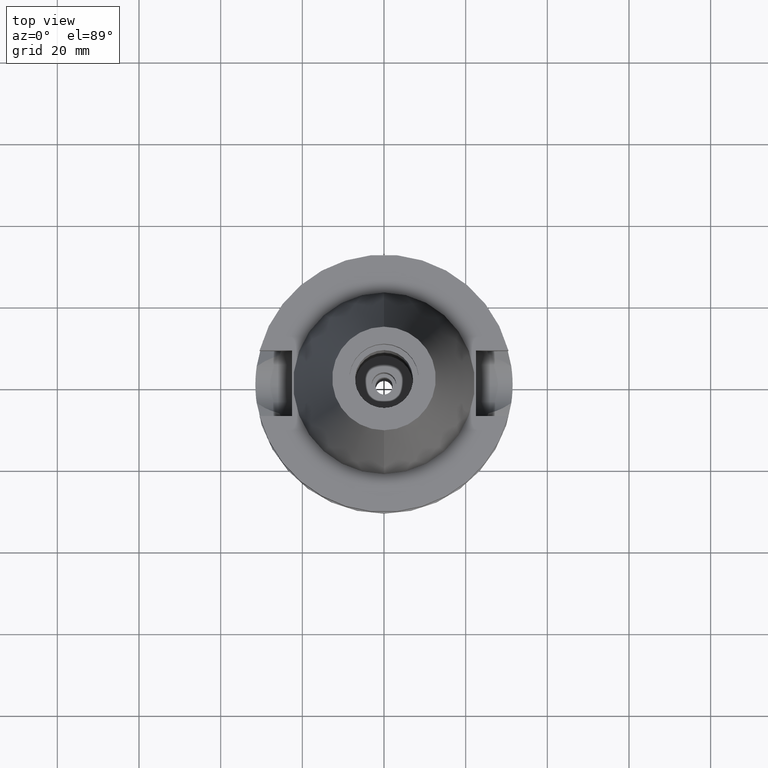
[diagram: clean part render]
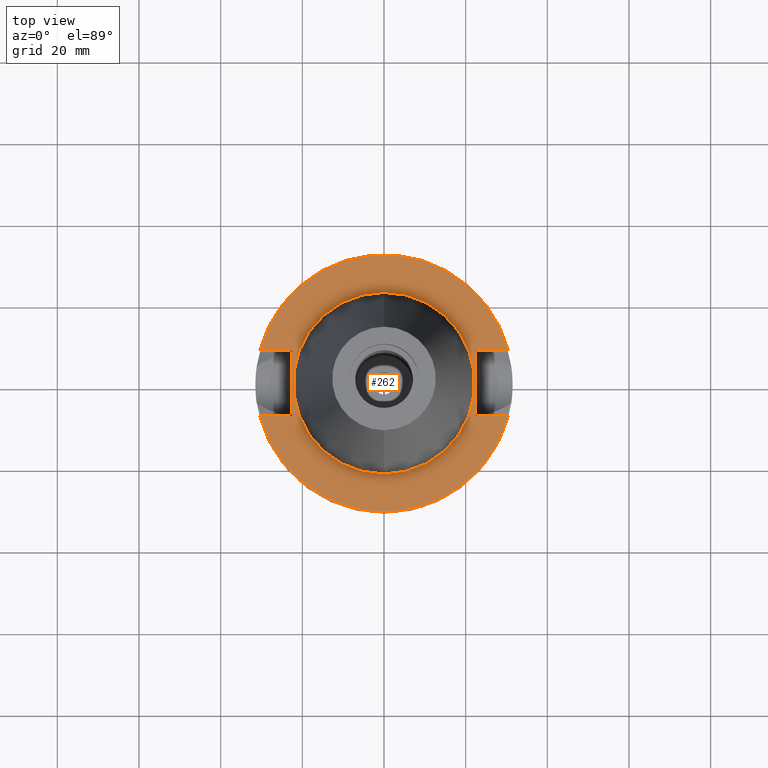
[diagram: same view with one face highlighted and labeled with its STEP entity id]
A machine part, top view. The second image highlights one B-rep face of the part: STEP entity #262.
In plain terms, the highlighted planar face has unit normal (0, 0, -1).
Its self-contained STEP definition (entity closure, byte-faithful):
#18 = AXIS2_PLACEMENT_3D ( 'NONE', #2061, #285, #955 ) ;
#64 = ORIENTED_EDGE ( 'NONE', *, *, #302, .F. ) ;
#84 = EDGE_CURVE ( 'NONE', #2535, #812, #452, .T. ) ;
#109 = CARTESIAN_POINT ( 'NONE',  ( 0.0000000000000000000, 1.212400331155999925E-14, -1.000000000000000000 ) ) ;
#129 = CARTESIAN_POINT ( 'NONE',  ( 0.0000000000000000000, -22.22500000000000142, -1.000000000000000000 ) ) ;
#151 = CARTESIAN_POINT ( 'NONE',  ( 22.50000000000000000, 8.050000000000000711, -1.000000000000000000 ) ) ;
#222 = CIRCLE ( 'NONE', #2093, 22.22500000000000142 ) ;
#245 = CARTESIAN_POINT ( 'NONE',  ( 0.0000000000000000000, 22.22500000000000142, -1.000000000000000000 ) ) ;
#257 = CARTESIAN_POINT ( 'NONE',  ( -22.50000000000000000, 8.050000000000000711, -1.000000000000000000 ) ) ;
#262 = ADVANCED_FACE ( 'NONE', ( #2855, #2437 ), #1488, .F. ) ;
#285 = DIRECTION ( 'NONE',  ( 0.0000000000000000000, 0.0000000000000000000, 1.000000000000000000 ) ) ;
#302 = EDGE_CURVE ( 'NONE', #2136, #961, #1216, .T. ) ;
#328 = CARTESIAN_POINT ( 'NONE',  ( 0.0000000000000000000, 2.118271568485000005E-14, -1.000000000000000000 ) ) ;
#336 = VERTEX_POINT ( 'NONE', #151 ) ;
#353 = CARTESIAN_POINT ( 'NONE',  ( -22.50000000000000000, 8.050000000000000711, -1.000000000000000000 ) ) ;
#376 = CARTESIAN_POINT ( 'NONE',  ( 22.50000000000000000, 8.050000000000000711, -1.000000000000000000 ) ) ;
#386 = ORIENTED_EDGE ( 'NONE', *, *, #1611, .F. ) ;
#392 = VECTOR ( 'NONE', #2672, 1000.000000000000000 ) ;
#444 = ORIENTED_EDGE ( 'NONE', *, *, #1643, .F. ) ;
#452 = CIRCLE ( 'NONE', #18, 22.22500000000000142 ) ;
#551 = CARTESIAN_POINT ( 'NONE',  ( -30.45402272279000044, -8.050000000000000711, -1.000000000000000000 ) ) ;
#564 = EDGE_CURVE ( 'NONE', #336, #1935, #1256, .T. ) ;
#571 = CARTESIAN_POINT ( 'NONE',  ( 0.0000000000000000000, 2.118271568485000005E-14, -1.000000000000000000 ) ) ;
#591 = CARTESIAN_POINT ( 'NONE',  ( 30.45402272279000044, -8.050000000000000711, -1.000000000000000000 ) ) ;
#683 = EDGE_CURVE ( 'NONE', #1218, #961, #2422, .T. ) ;
#734 = ORIENTED_EDGE ( 'NONE', *, *, #2075, .F. ) ;
#802 = DIRECTION ( 'NONE',  ( 0.0000000000000000000, 0.0000000000000000000, -1.000000000000000000 ) ) ;
#812 = VERTEX_POINT ( 'NONE', #245 ) ;
#846 = DIRECTION ( 'NONE',  ( 0.0000000000000000000, 1.000000000000000000, 0.0000000000000000000 ) ) ;
#887 = ORIENTED_EDGE ( 'NONE', *, *, #2781, .F. ) ;
#898 = DIRECTION ( 'NONE',  ( 0.0000000000000000000, -1.000000000000000000, 0.0000000000000000000 ) ) ;
#900 = VECTOR ( 'NONE', #2900, 1000.000000000000000 ) ;
#955 = DIRECTION ( 'NONE',  ( 0.0000000000000000000, -1.000000000000000000, 0.0000000000000000000 ) ) ;
#961 = VERTEX_POINT ( 'NONE', #551 ) ;
#1004 = CARTESIAN_POINT ( 'NONE',  ( -22.50000000000000000, -8.050000000000000711, -1.000000000000000000 ) ) ;
#1031 = DIRECTION ( 'NONE',  ( 0.0000000000000000000, -1.000000000000000000, 0.0000000000000000000 ) ) ;
#1059 = ORIENTED_EDGE ( 'NONE', *, *, #564, .F. ) ;
#1085 = CIRCLE ( 'NONE', #1231, 31.50000000000000000 ) ;
#1094 = CARTESIAN_POINT ( 'NONE',  ( -22.50000000000000000, -8.050000000000000711, -1.000000000000000000 ) ) ;
#1103 = EDGE_LOOP ( 'NONE', ( #386, #1849 ) ) ;
#1130 = EDGE_LOOP ( 'NONE', ( #2214, #64, #1223, #1059, #2221, #444, #734, #887 ) ) ;
#1142 = VERTEX_POINT ( 'NONE', #1980 ) ;
#1146 = CARTESIAN_POINT ( 'NONE',  ( 22.50000000000000000, -8.050000000000000711, -1.000000000000000000 ) ) ;
#1150 = LINE ( 'NONE', #2314, #2062 ) ;
#1160 = DIRECTION ( 'NONE',  ( 1.000000000000000000, 3.573249715389999860E-14, 0.0000000000000000000 ) ) ;
#1216 = CIRCLE ( 'NONE', #2084, 31.50000000000000000 ) ;
#1218 = VERTEX_POINT ( 'NONE', #1094 ) ;
#1223 = ORIENTED_EDGE ( 'NONE', *, *, #1961, .F. ) ;
#1231 = AXIS2_PLACEMENT_3D ( 'NONE', #2634, #2423, #846 ) ;
#1256 = LINE ( 'NONE', #376, #900 ) ;
#1323 = VECTOR ( 'NONE', #1160, 1000.000000000000000 ) ;
#1372 = VECTOR ( 'NONE', #2853, 1000.000000000000000 ) ;
#1381 = LINE ( 'NONE', #2094, #1323 ) ;
#1477 = CARTESIAN_POINT ( 'NONE',  ( -30.45402272279000044, 8.050000000000000711, -1.000000000000000000 ) ) ;
#1488 = PLANE ( 'NONE',  #1743 ) ;
#1611 = EDGE_CURVE ( 'NONE', #812, #2535, #222, .T. ) ;
#1643 = EDGE_CURVE ( 'NONE', #2510, #1142, #1085, .T. ) ;
#1672 = DIRECTION ( 'NONE',  ( -1.000000000000000000, 3.550916904668000126E-14, 0.0000000000000000000 ) ) ;
#1731 = DIRECTION ( 'NONE',  ( 0.0000000000000000000, 0.0000000000000000000, 1.000000000000000000 ) ) ;
#1741 = LINE ( 'NONE', #353, #1372 ) ;
#1743 = AXIS2_PLACEMENT_3D ( 'NONE', #109, #802, #1031 ) ;
#1749 = CARTESIAN_POINT ( 'NONE',  ( 22.50000000000000000, 8.050000000000000711, -1.000000000000000000 ) ) ;
#1849 = ORIENTED_EDGE ( 'NONE', *, *, #84, .F. ) ;
#1935 = VERTEX_POINT ( 'NONE', #1146 ) ;
#1952 = DIRECTION ( 'NONE',  ( 0.0000000000000000000, 0.0000000000000000000, -1.000000000000000000 ) ) ;
#1961 = EDGE_CURVE ( 'NONE', #1935, #2136, #1381, .T. ) ;
#1980 = CARTESIAN_POINT ( 'NONE',  ( 30.45402272279000044, 8.050000000000000711, -1.000000000000000000 ) ) ;
#2061 = CARTESIAN_POINT ( 'NONE',  ( 0.0000000000000000000, 2.118271568485000005E-14, -1.000000000000000000 ) ) ;
#2062 = VECTOR ( 'NONE', #2706, 1000.000000000000000 ) ;
#2075 = EDGE_CURVE ( 'NONE', #2742, #2510, #1741, .T. ) ;
#2084 = AXIS2_PLACEMENT_3D ( 'NONE', #571, #1952, #898 ) ;
#2093 = AXIS2_PLACEMENT_3D ( 'NONE', #328, #1731, #2441 ) ;
#2094 = CARTESIAN_POINT ( 'NONE',  ( 22.50000000000000000, -8.050000000000000711, -1.000000000000000000 ) ) ;
#2136 = VERTEX_POINT ( 'NONE', #591 ) ;
#2214 = ORIENTED_EDGE ( 'NONE', *, *, #683, .T. ) ;
#2221 = ORIENTED_EDGE ( 'NONE', *, *, #2699, .T. ) ;
#2314 = CARTESIAN_POINT ( 'NONE',  ( -22.50000000000000000, -8.050000000000000711, -1.000000000000000000 ) ) ;
#2422 = LINE ( 'NONE', #1004, #2719 ) ;
#2423 = DIRECTION ( 'NONE',  ( 0.0000000000000000000, 0.0000000000000000000, -1.000000000000000000 ) ) ;
#2437 = FACE_BOUND ( 'NONE', #1103, .T. ) ;
#2441 = DIRECTION ( 'NONE',  ( 0.0000000000000000000, 1.000000000000000000, 0.0000000000000000000 ) ) ;
#2510 = VERTEX_POINT ( 'NONE', #1477 ) ;
#2535 = VERTEX_POINT ( 'NONE', #129 ) ;
#2634 = CARTESIAN_POINT ( 'NONE',  ( 0.0000000000000000000, 2.118271568485000005E-14, -1.000000000000000000 ) ) ;
#2672 = DIRECTION ( 'NONE',  ( 1.000000000000000000, -3.506251283225999947E-14, 0.0000000000000000000 ) ) ;
#2699 = EDGE_CURVE ( 'NONE', #336, #1142, #2905, .T. ) ;
#2706 = DIRECTION ( 'NONE',  ( 0.0000000000000000000, 1.000000000000000000, 0.0000000000000000000 ) ) ;
#2719 = VECTOR ( 'NONE', #1672, 1000.000000000000000 ) ;
#2742 = VERTEX_POINT ( 'NONE', #257 ) ;
#2781 = EDGE_CURVE ( 'NONE', #1218, #2742, #1150, .T. ) ;
#2853 = DIRECTION ( 'NONE',  ( -1.000000000000000000, -3.550916904668000126E-14, 0.0000000000000000000 ) ) ;
#2855 = FACE_OUTER_BOUND ( 'NONE', #1130, .T. ) ;
#2900 = DIRECTION ( 'NONE',  ( 0.0000000000000000000, -1.000000000000000000, 0.0000000000000000000 ) ) ;
#2905 = LINE ( 'NONE', #1749, #392 ) ;